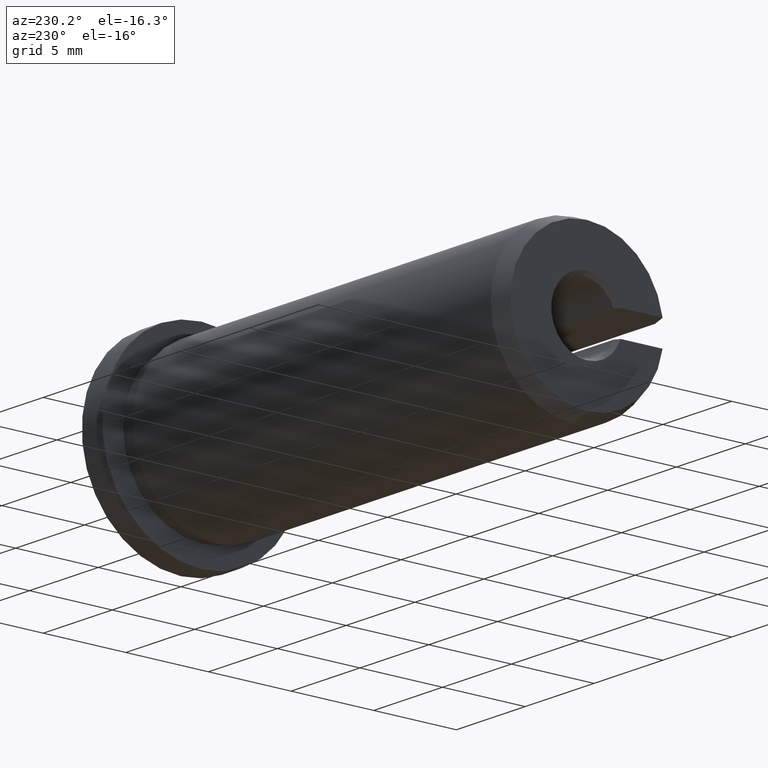
[diagram: clean part render]
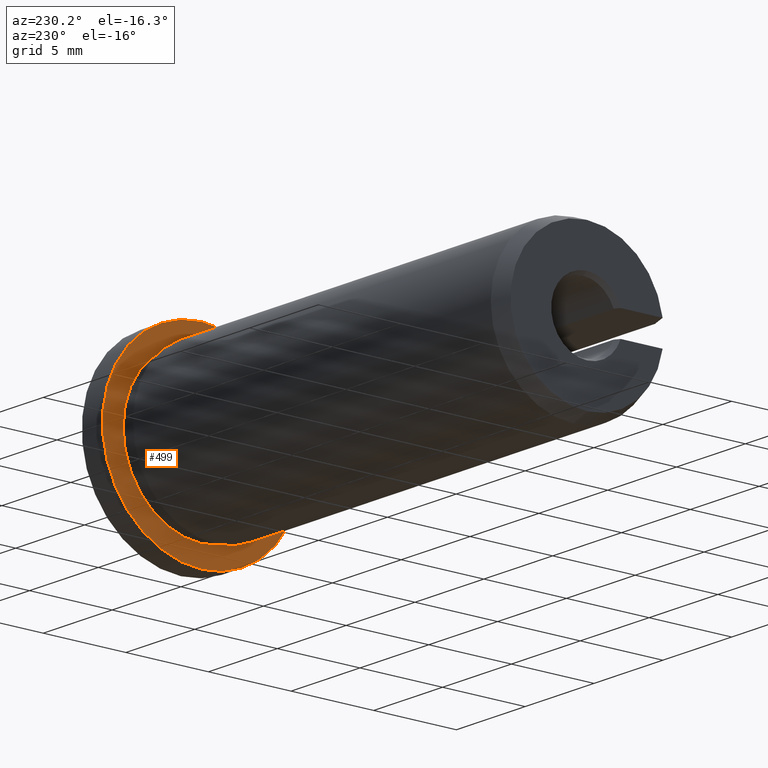
[diagram: same view with one face highlighted and labeled with its STEP entity id]
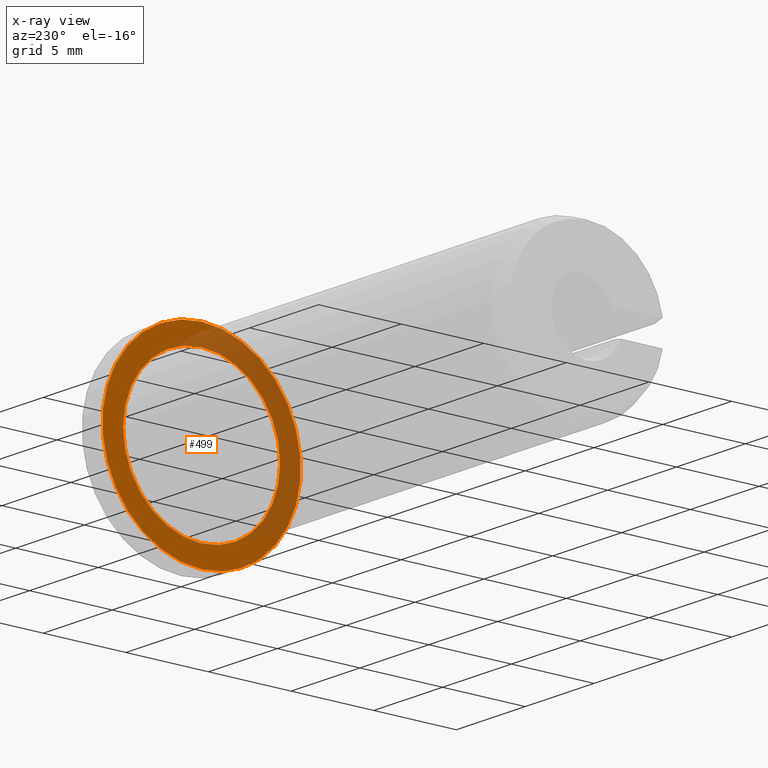
[diagram: x-ray of the same camera — body ghosted, the highlighted face saturated]
A machine part, auxiliary view. The second image highlights one B-rep face of the part: STEP entity #499.
The next image is the same camera in x-ray: the body ghosted, the highlighted face saturated — about 38% of this face is hidden behind the body in this view.
In plain terms, the highlighted planar face has unit normal (1, 0, 0).
Its self-contained STEP definition (entity closure, byte-faithful):
#35 = DIRECTION ( 'NONE',  ( 0.0000000000000000000, 0.0000000000000000000, -1.000000000000000000 ) ) ;
#40 = VERTEX_POINT ( 'NONE', #711 ) ;
#113 = EDGE_CURVE ( 'NONE', #437, #592, #290, .T. ) ;
#132 = ORIENTED_EDGE ( 'NONE', *, *, #696, .F. ) ;
#155 = EDGE_CURVE ( 'NONE', #607, #40, #375, .T. ) ;
#162 = EDGE_LOOP ( 'NONE', ( #190, #617 ) ) ;
#168 = CARTESIAN_POINT ( 'NONE',  ( -1.500000000000001300, 0.0000000000000000000, 0.0000000000000000000 ) ) ;
#190 = ORIENTED_EDGE ( 'NONE', *, *, #194, .T. ) ;
#194 = EDGE_CURVE ( 'NONE', #592, #437, #356, .T. ) ;
#212 = DIRECTION ( 'NONE',  ( 1.000000000000000000, 0.0000000000000000000, 0.0000000000000000000 ) ) ;
#224 = CARTESIAN_POINT ( 'NONE',  ( -1.500000000000000000, 6.000000000000000000, 0.0000000000000000000 ) ) ;
#227 = EDGE_LOOP ( 'NONE', ( #579, #132 ) ) ;
#237 = CARTESIAN_POINT ( 'NONE',  ( -1.500000000000001300, 0.0000000000000000000, 0.0000000000000000000 ) ) ;
#248 = DIRECTION ( 'NONE',  ( -1.000000000000000000, -0.0000000000000000000, -0.0000000000000000000 ) ) ;
#290 = CIRCLE ( 'NONE', #373, 6.000000000000000000 ) ;
#298 = DIRECTION ( 'NONE',  ( 0.0000000000000000000, 0.0000000000000000000, 1.000000000000000000 ) ) ;
#318 = AXIS2_PLACEMENT_3D ( 'NONE', #481, #662, #335 ) ;
#335 = DIRECTION ( 'NONE',  ( 0.0000000000000000000, 0.0000000000000000000, 1.000000000000000000 ) ) ;
#350 = PLANE ( 'NONE',  #610 ) ;
#356 = CIRCLE ( 'NONE', #731, 6.000000000000000000 ) ;
#365 = CARTESIAN_POINT ( 'NONE',  ( -1.500000000000001300, 0.0000000000000000000, 4.750000000000000000 ) ) ;
#373 = AXIS2_PLACEMENT_3D ( 'NONE', #237, #248, #298 ) ;
#375 = CIRCLE ( 'NONE', #574, 4.750000000000000000 ) ;
#397 = CARTESIAN_POINT ( 'NONE',  ( -1.500000000000001300, 7.347880794884119700E-016, -6.000000000000000000 ) ) ;
#398 = FACE_BOUND ( 'NONE', #227, .T. ) ;
#401 = CARTESIAN_POINT ( 'NONE',  ( -1.500000000000001300, 0.0000000000000000000, 0.0000000000000000000 ) ) ;
#437 = VERTEX_POINT ( 'NONE', #397 ) ;
#442 = DIRECTION ( 'NONE',  ( 0.0000000000000000000, 0.0000000000000000000, 1.000000000000000000 ) ) ;
#443 = DIRECTION ( 'NONE',  ( -1.000000000000000000, -0.0000000000000000000, -0.0000000000000000000 ) ) ;
#481 = CARTESIAN_POINT ( 'NONE',  ( -1.500000000000001300, 0.0000000000000000000, 0.0000000000000000000 ) ) ;
#499 = ADVANCED_FACE ( 'NONE', ( #398, #759 ), #350, .F. ) ;
#503 = CARTESIAN_POINT ( 'NONE',  ( -1.500000000000001300, 0.0000000000000000000, 6.000000000000000000 ) ) ;
#542 = DIRECTION ( 'NONE',  ( 0.0000000000000000000, 0.0000000000000000000, 1.000000000000000000 ) ) ;
#574 = AXIS2_PLACEMENT_3D ( 'NONE', #401, #443, #542 ) ;
#579 = ORIENTED_EDGE ( 'NONE', *, *, #155, .F. ) ;
#592 = VERTEX_POINT ( 'NONE', #503 ) ;
#607 = VERTEX_POINT ( 'NONE', #365 ) ;
#610 = AXIS2_PLACEMENT_3D ( 'NONE', #224, #212, #35 ) ;
#617 = ORIENTED_EDGE ( 'NONE', *, *, #113, .T. ) ;
#659 = DIRECTION ( 'NONE',  ( -1.000000000000000000, -0.0000000000000000000, -0.0000000000000000000 ) ) ;
#662 = DIRECTION ( 'NONE',  ( -1.000000000000000000, -0.0000000000000000000, -0.0000000000000000000 ) ) ;
#696 = EDGE_CURVE ( 'NONE', #40, #607, #739, .T. ) ;
#711 = CARTESIAN_POINT ( 'NONE',  ( -1.500000000000001300, 5.817072295949927400E-016, -4.750000000000000000 ) ) ;
#731 = AXIS2_PLACEMENT_3D ( 'NONE', #168, #659, #442 ) ;
#739 = CIRCLE ( 'NONE', #318, 4.750000000000000000 ) ;
#759 = FACE_OUTER_BOUND ( 'NONE', #162, .T. ) ;